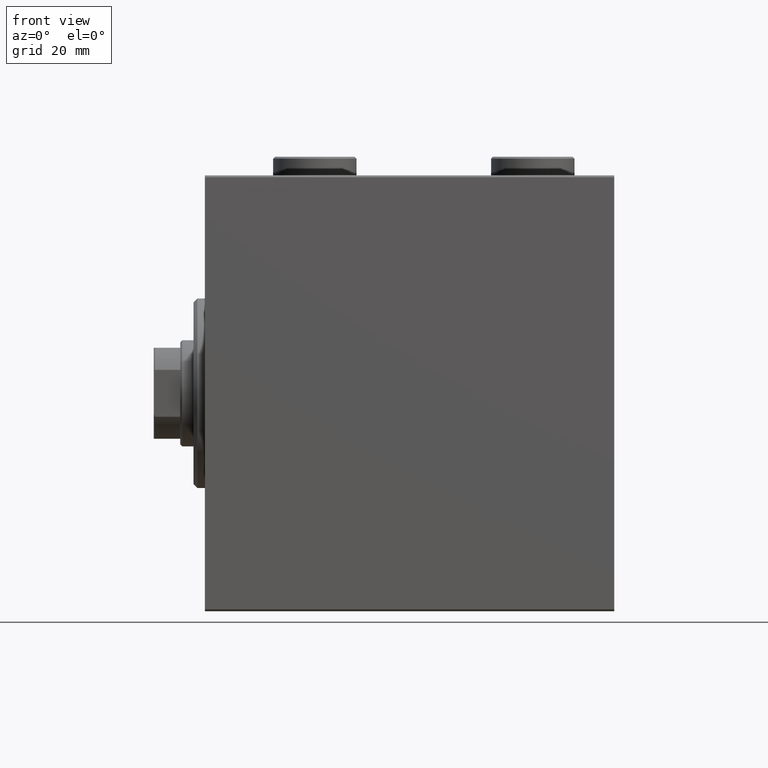
[diagram: clean part render]
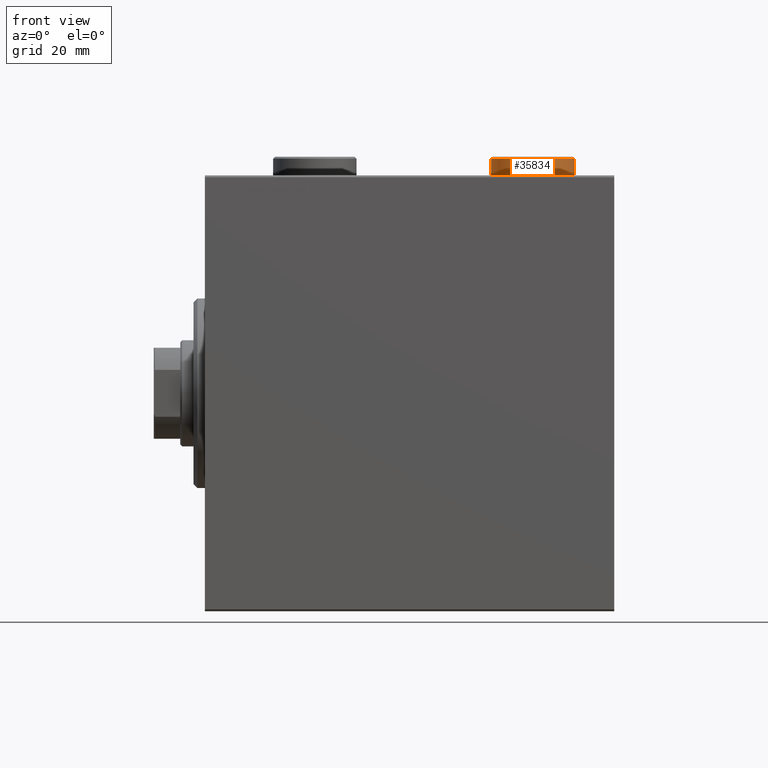
[diagram: same view with one face highlighted and labeled with its STEP entity id]
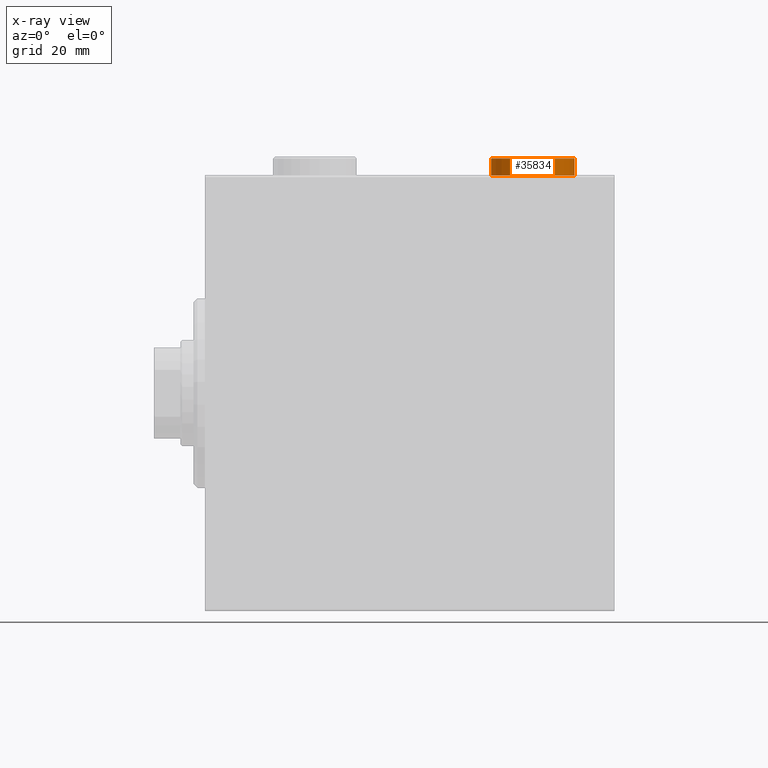
[diagram: x-ray of the same camera — body ghosted, the highlighted face saturated]
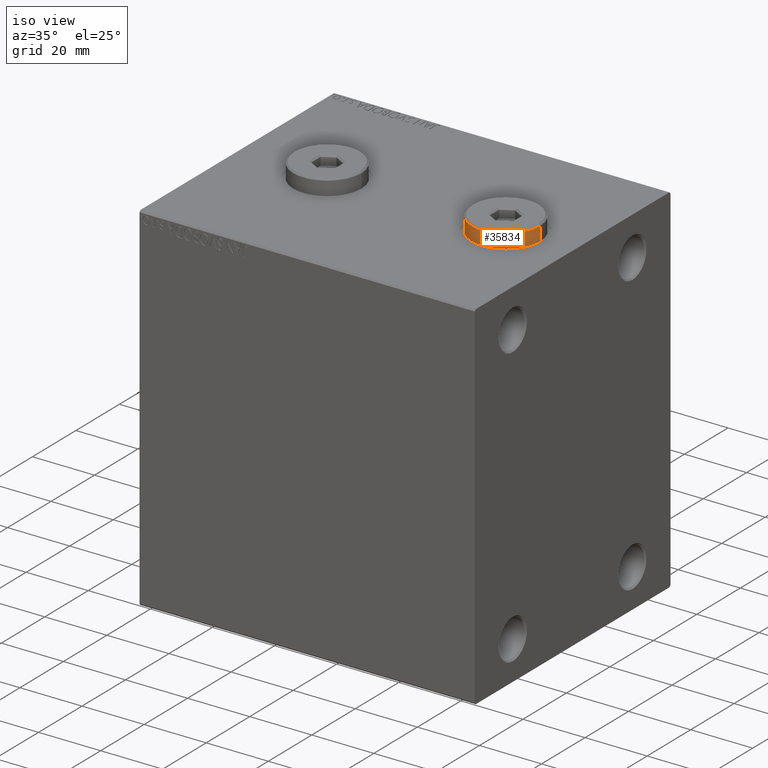
[diagram: same view with one face highlighted and labeled with its STEP entity id]
A machine part, front view. The second image highlights one B-rep face of the part: STEP entity #35834.
The next image is the same camera in x-ray: the body ghosted, the highlighted face saturated — about 3% of this face is hidden behind the body in this view.
A second angle (iso view) of the same face is appended — the face is thin or edge-on in the first view.
In plain terms, the highlighted cylindrical surface (partial cylindrical patch) has radius 11 mm, axis along (-0, -0, -1).
Its self-contained STEP definition (entity closure, byte-faithful):
#6 = CARTESIAN_POINT ( 'NONE',  ( -11.00000000000000000, 0.000000000000000000, 4.500000000000003553 ) ) ;
#1837 = EDGE_CURVE ( 'NONE', #35793, #6048, #31070, .T. ) ;
#2113 = CYLINDRICAL_SURFACE ( 'NONE', #18916, 11.00000000000000000 ) ;
#4482 = DIRECTION ( 'NONE',  ( 1.000000000000000000, 0.000000000000000000, 0.000000000000000000 ) ) ;
#5207 = ORIENTED_EDGE ( 'NONE', *, *, #1837, .T. ) ;
#5919 = EDGE_CURVE ( 'NONE', #23822, #45670, #6007, .T. ) ;
#6007 = CIRCLE ( 'NONE', #29584, 11.00000000000000000 ) ;
#6048 = VERTEX_POINT ( 'NONE', #11292 ) ;
#7506 = AXIS2_PLACEMENT_3D ( 'NONE', #39131, #21581, #4482 ) ;
#8594 = FACE_OUTER_BOUND ( 'NONE', #39121, .T. ) ;
#8655 = EDGE_CURVE ( 'NONE', #45670, #35793, #23130, .T. ) ;
#9044 = CARTESIAN_POINT ( 'NONE',  ( -11.00000000000000000, 0.000000000000000000, 0.000000000000000000 ) ) ;
#11292 = CARTESIAN_POINT ( 'NONE',  ( 11.00000000000000000, 1.347111479062088405E-15, 0.000000000000000000 ) ) ;
#16379 = ORIENTED_EDGE ( 'NONE', *, *, #5919, .T. ) ;
#17303 = DIRECTION ( 'NONE',  ( 0.000000000000000000, 0.000000000000000000, -1.000000000000000000 ) ) ;
#18916 = AXIS2_PLACEMENT_3D ( 'NONE', #37428, #19212, #40902 ) ;
#19212 = DIRECTION ( 'NONE',  ( -0.000000000000000000, -0.000000000000000000, -1.000000000000000000 ) ) ;
#20558 = ORIENTED_EDGE ( 'NONE', *, *, #22677, .F. ) ;
#21581 = DIRECTION ( 'NONE',  ( 0.000000000000000000, 0.000000000000000000, 1.000000000000000000 ) ) ;
#22677 = EDGE_CURVE ( 'NONE', #23822, #6048, #24593, .T. ) ;
#23130 = LINE ( 'NONE', #37215, #43692 ) ;
#23822 = VERTEX_POINT ( 'NONE', #36741 ) ;
#24593 = LINE ( 'NONE', #38458, #32128 ) ;
#29584 = AXIS2_PLACEMENT_3D ( 'NONE', #38081, #17303, #31380 ) ;
#31070 = CIRCLE ( 'NONE', #7506, 11.00000000000000000 ) ;
#31380 = DIRECTION ( 'NONE',  ( 1.000000000000000000, 0.000000000000000000, 0.000000000000000000 ) ) ;
#32128 = VECTOR ( 'NONE', #41251, 1000.000000000000000 ) ;
#32838 = DIRECTION ( 'NONE',  ( -0.000000000000000000, -0.000000000000000000, -1.000000000000000000 ) ) ;
#35793 = VERTEX_POINT ( 'NONE', #9044 ) ;
#35834 = ADVANCED_FACE ( 'NONE', ( #8594 ), #2113, .T. ) ;
#36741 = CARTESIAN_POINT ( 'NONE',  ( 11.00000000000000000, 1.347111479062088405E-15, 4.500000000000003553 ) ) ;
#37215 = CARTESIAN_POINT ( 'NONE',  ( -11.00000000000000000, 0.000000000000000000, 5.000000000000000000 ) ) ;
#37428 = CARTESIAN_POINT ( 'NONE',  ( 0.000000000000000000, 0.000000000000000000, 5.000000000000000000 ) ) ;
#38081 = CARTESIAN_POINT ( 'NONE',  ( 0.000000000000000000, 0.000000000000000000, 4.500000000000003553 ) ) ;
#38458 = CARTESIAN_POINT ( 'NONE',  ( 11.00000000000000000, 1.347111479062088405E-15, 5.000000000000000000 ) ) ;
#39121 = EDGE_LOOP ( 'NONE', ( #20558, #16379, #45732, #5207 ) ) ;
#39131 = CARTESIAN_POINT ( 'NONE',  ( 0.000000000000000000, 0.000000000000000000, 0.000000000000000000 ) ) ;
#40902 = DIRECTION ( 'NONE',  ( -1.000000000000000000, 0.000000000000000000, 0.000000000000000000 ) ) ;
#41251 = DIRECTION ( 'NONE',  ( -0.000000000000000000, -0.000000000000000000, -1.000000000000000000 ) ) ;
#43692 = VECTOR ( 'NONE', #32838, 1000.000000000000000 ) ;
#45670 = VERTEX_POINT ( 'NONE', #6 ) ;
#45732 = ORIENTED_EDGE ( 'NONE', *, *, #8655, .T. ) ;